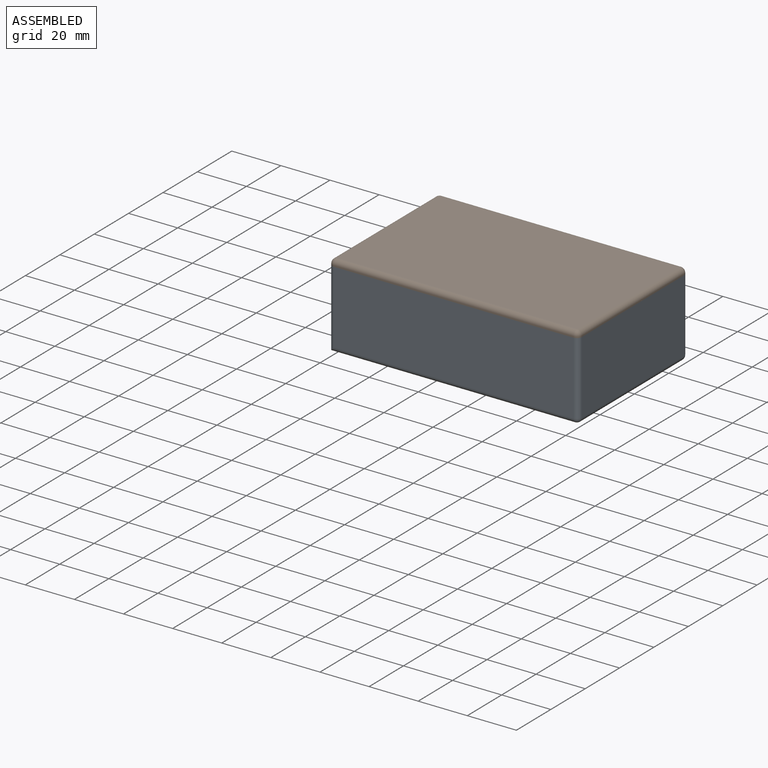
[diagram: assembled view]
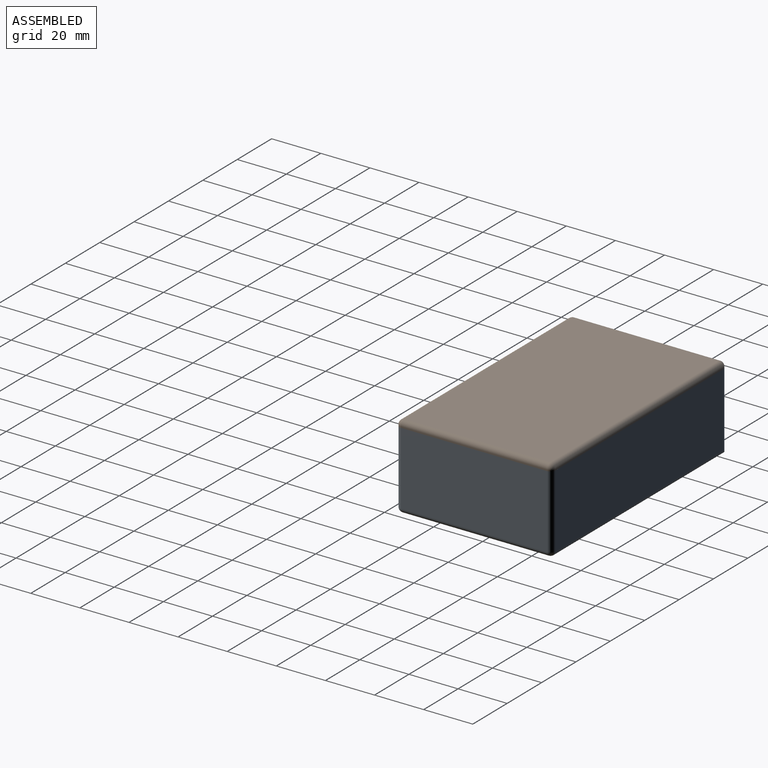
[diagram: assembled view, second angle]
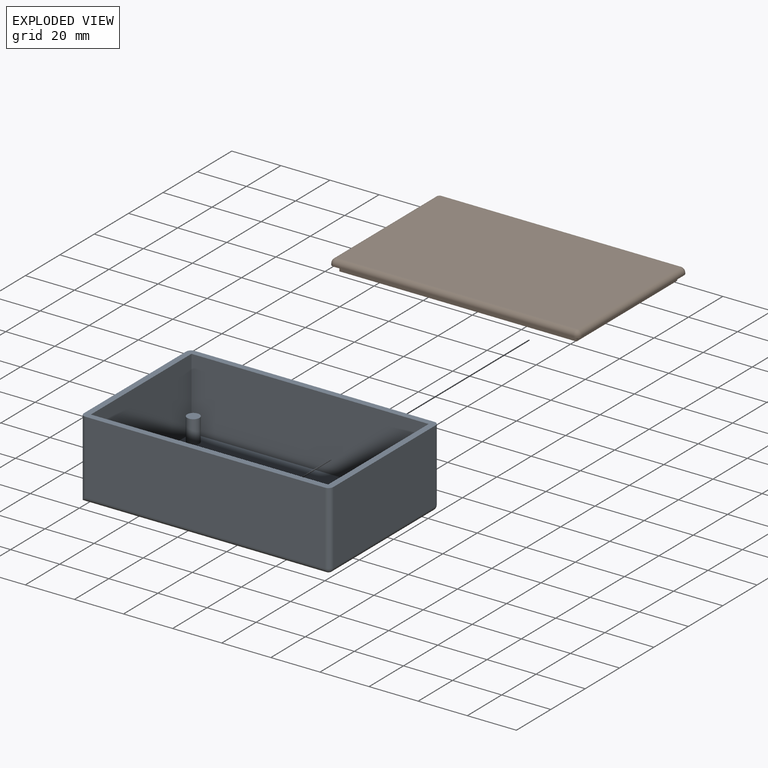
[diagram: exploded view]
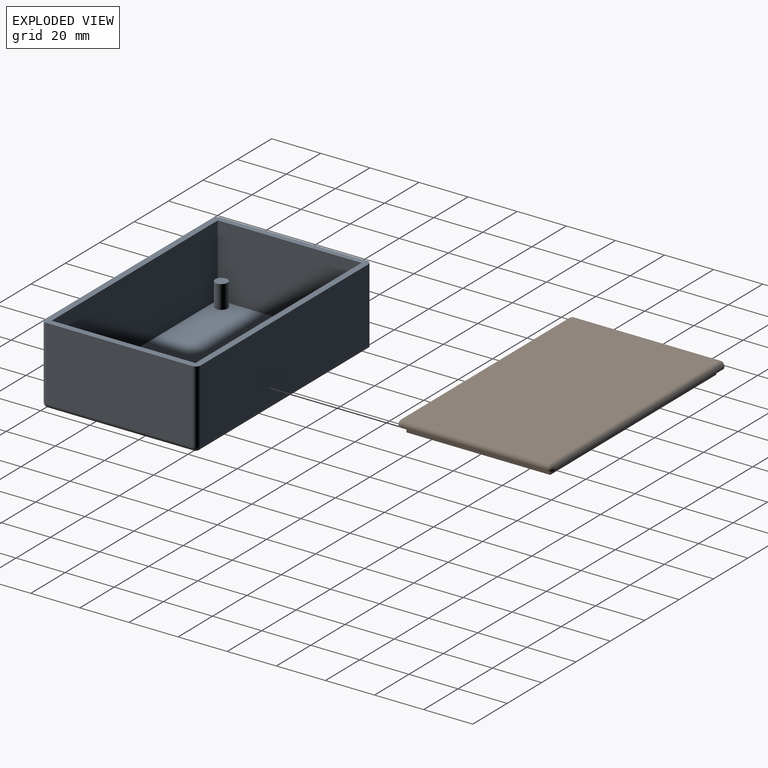
[diagram: exploded view, second angle]
ASSEMBLY  parts=2 mates=2
PART A: 28 faces, bbox 101.6x63.5x31.8 mm
  f0: plane 59.5x29.75mm, normal (1,0,0), area 1770.1mm2, adj f4,f13,f17,f19
  f1: plane 97.6x29.75mm, normal (0,1,0), area 2903.6mm2, adj f4,f14,f16,f19
  f2: plane 59.5x31.75mm, normal (-1,0,0), area 1889.1mm2, adj f4,f5,f11,f14
  f3: plane 97.6x29.75mm, normal (0,-1,0), area 2903.6mm2, adj f4,f11,f12,f13
  f4: plane 101.6x63.5mm, normal (0,0,1), area 797.1mm2, adj f0,f1,f2,f3,f6,f7,f8,f9
  f5: plane 99.6x59.5mm, normal (0,0,-1), area 5926.2mm2, adj f2,f12,f16,f17
  f6: plane 58.5x29.25mm, normal (-1,0,0), area 1711.1mm2, adj f4,f7,f9,f10
  f7: plane 96.6x29.25mm, normal (0,-1,0), area 2825.6mm2, adj f4,f6,f8,f10
  f8: plane 58.5x29.25mm, normal (1,0,0), area 1711.1mm2, adj f4,f7,f9,f10
  f9: plane 96.6x29.25mm, normal (0,1,0), area 2825.6mm2, adj f4,f6,f8,f10
  f10: plane 96.6x58.5mm, normal (0,0,1), area 5572.6mm2, adj f6,f7,f8,f9,f20,f22,f24,f26
  f11: cylinder r=2mm len=31.75mm, axis (0,0,-1), area 97.5mm2, adj f2,f3,f4,f12
  f12: cylinder r=2mm len=99.6mm, axis (1,0,0), area 310.6mm2, adj f3,f5,f11,f15
  f13: cylinder r=2mm len=29.75mm, axis (0,0,1), area 93.5mm2, adj f0,f3,f4,f15
  f14: cylinder r=2mm len=31.75mm, axis (0,0,1), area 97.5mm2, adj f1,f2,f4,f16
  f15: sphere r=2mm, area 6.3mm2, adj f12,f13,f17
  f16: cylinder r=2mm len=99.6mm, axis (-1,0,0), area 310.6mm2, adj f1,f5,f14,f18
  f17: cylinder r=2mm len=59.5mm, axis (0,1,0), area 186.9mm2, adj f0,f5,f15,f18
  f18: sphere r=2mm, area 6.3mm2, adj f16,f17,f19
  f19: cylinder r=2mm len=29.75mm, axis (0,0,-1), area 93.5mm2, adj f0,f1,f4,f18
  f20: cylinder r=2.5mm len=9.5mm, axis (0,0,-1), area 149.2mm2, adj f10,f21
  f21: plane 5x5mm, normal (0,0,1), area 19.6mm2, adj f20
  f22: cylinder r=2.5mm len=9.5mm, axis (0,0,-1), area 149.2mm2, adj f10,f23
  f23: plane 5x5mm, normal (0,0,1), area 19.6mm2, adj f22
  f24: cylinder r=2.5mm len=9.5mm, axis (0,0,-1), area 149.2mm2, adj f10,f25
  f25: plane 5x5mm, normal (0,0,1), area 19.6mm2, adj f24
  f26: cylinder r=2.5mm len=9.5mm, axis (0,0,-1), area 149.2mm2, adj f10,f27
  f27: plane 5x5mm, normal (0,0,1), area 19.6mm2, adj f26
PART B: 28 faces, bbox 101.6x63.5x5 mm
  f0: plane 59.5x0.5mm, normal (1,0,0), area 29.8mm2, adj f4,f21,f25,f27
  f1: plane 97.6x0.5mm, normal (0,1,0), area 48.8mm2, adj f4,f18,f24,f27
  f2: plane 59.5x0.5mm, normal (-1,0,0), area 29.8mm2, adj f4,f16,f18,f19
  f3: plane 97.6x0.5mm, normal (0,-1,0), area 48.8mm2, adj f4,f16,f20,f21
  f4: plane 101.6x63.5mm, normal (0,0,1), area 797.1mm2, adj f0,f1,f2,f3,f6,f7,f8,f13
  f5: plane 97.6x59.5mm, normal (0,0,-1), area 5807.2mm2, adj f19,f20,f24,f25
  f6: plane 58.5x2.5mm, normal (-1,0,0), area 146.2mm2, adj f4,f7,f13,f14
  f7: plane 96.6x2.5mm, normal (0,-1,0), area 241.5mm2, adj f4,f6,f8,f14
  f8: plane 58.5x2.5mm, normal (1,0,0), area 146.2mm2, adj f4,f7,f13,f14
  f9: plane 93.6x2.5mm, normal (0,-1,0), area 234mm2, adj f10,f12,f14,f15
  f10: plane 55.5x2.5mm, normal (-1,0,0), area 138.7mm2, adj f9,f11,f14,f15
  f11: plane 93.6x2.5mm, normal (0,1,0), area 234mm2, adj f10,f12,f14,f15
  f12: plane 55.5x2.5mm, normal (1,0,0), area 138.7mm2, adj f9,f11,f14,f15
  f13: plane 96.6x2.5mm, normal (0,1,0), area 241.5mm2, adj f4,f6,f8,f14
  f14: plane 96.6x58.5mm, normal (0,0,1), area 456.3mm2, adj f6,f7,f8,f9,f10,f11,f12,f13
  f15: plane 93.6x55.5mm, normal (0,0,1), area 5194.8mm2, adj f9,f10,f11,f12
  f16: cylinder r=2mm len=2mm, axis (0,0,-1), area 1.6mm2, adj f2,f3,f4,f17
  f17: sphere r=2mm, area 6.3mm2, adj f16,f19,f20
  f18: cylinder r=2mm len=2mm, axis (0,0,1), area 1.6mm2, adj f1,f2,f4,f22
  f19: cylinder r=2mm len=59.5mm, axis (0,-1,0), area 186.9mm2, adj f2,f5,f17,f22
  f20: cylinder r=2mm len=97.6mm, axis (1,0,0), area 306.6mm2, adj f3,f5,f17,f23
  f21: cylinder r=2mm len=2mm, axis (0,0,1), area 1.6mm2, adj f0,f3,f4,f23
  f22: sphere r=2mm, area 6.3mm2, adj f18,f19,f24
  f23: sphere r=2mm, area 6.3mm2, adj f20,f21,f25
  f24: cylinder r=2mm len=97.6mm, axis (-1,0,0), area 306.6mm2, adj f1,f5,f22,f26
  f25: cylinder r=2mm len=59.5mm, axis (0,1,0), area 186.9mm2, adj f0,f5,f23,f26
  f26: sphere r=2mm, area 6.3mm2, adj f24,f25,f27
  f27: cylinder r=2mm len=2mm, axis (0,0,-1), area 1.6mm2, adj f0,f1,f4,f26
PLACE A t=(-69.55,105.64,-49.91)mm
PLACE B rot(axis=(0,1,0),180deg) t=(-69.55,191.63,-15.66)mm
MATE slider A.f9 <-> B.f7  axis (0,1,0) through (-69.55,108.14,-18.16)mm
MATE slider B.f4 <-> A.f4  axis (0,0,-1) through (-69.55,166.64,-18.16)mm
